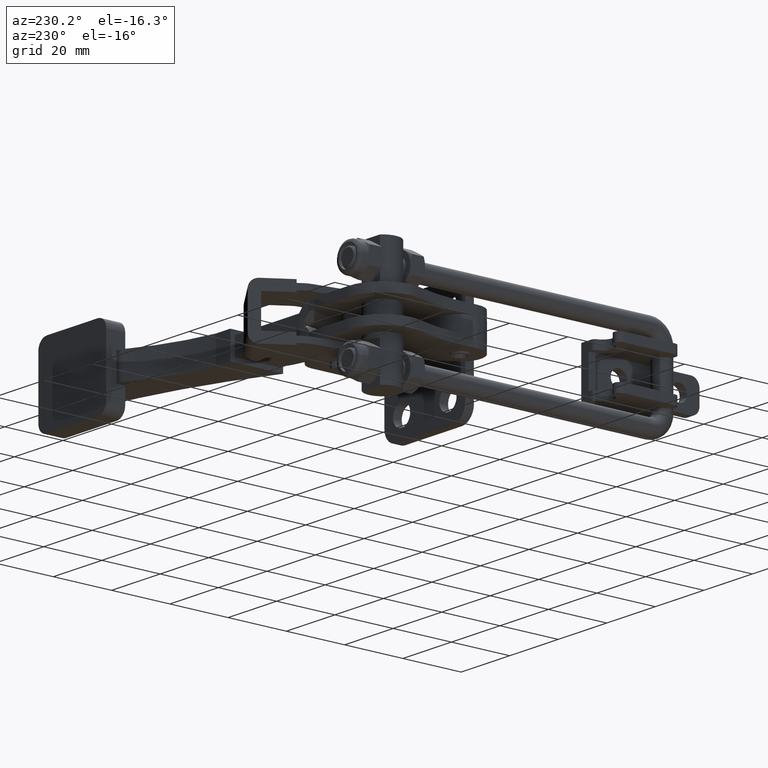
[diagram: clean part render]
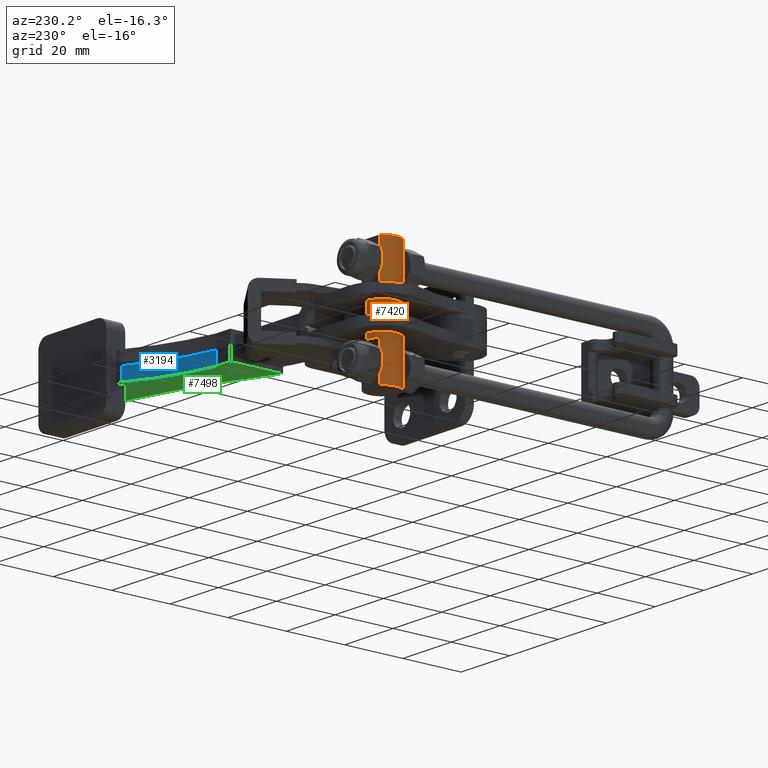
[diagram: same view with three faces highlighted in distinct colors, each labeled with its STEP entity id]
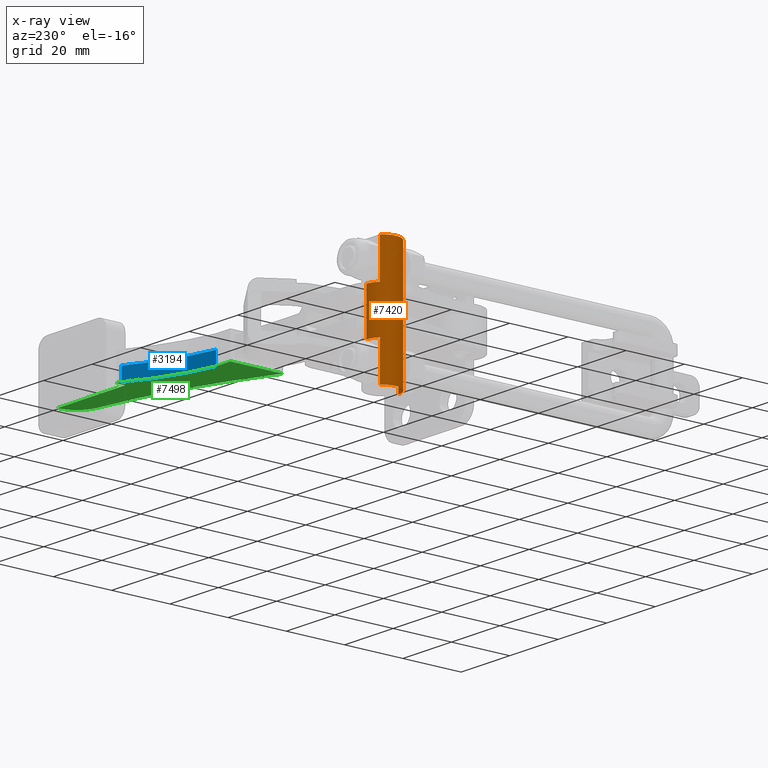
[diagram: x-ray of the same camera — body ghosted, the three highlighted faces saturated]
A machine part, auxiliary view with three faces highlighted in distinct colors.
The next image is the same camera in x-ray (body ghosted, the three faces saturated) — at least one of them is partly hidden behind the body in this view.
Their STEP definitions:

[orange] entity #7420 — the highlighted cylindrical surface (edge-blend (fillet) strip) has radius 5.5 mm, axis along (0, -0, 1).
#222 = EDGE_CURVE ( 'NONE', #4250, #13028, #6170, .T. ) ;
#230 = CARTESIAN_POINT ( 'NONE',  ( -42.39142380391529500, 33.50005253218331800, -20.64999999999978500 ) ) ;
#346 = DIRECTION ( 'NONE',  ( 2.241968444763827700E-018, -6.119128233782430400E-017, 1.000000000000000000 ) ) ;
#416 = AXIS2_PLACEMENT_3D ( 'NONE', #11990, #13130, #11978 ) ;
#536 = VERTEX_POINT ( 'NONE', #4792 ) ;
#758 = VERTEX_POINT ( 'NONE', #2503 ) ;
#777 = VERTEX_POINT ( 'NONE', #1076 ) ;
#918 = DIRECTION ( 'NONE',  ( 2.241968444763827700E-018, -6.119128233782430400E-017, 1.000000000000000000 ) ) ;
#950 = CARTESIAN_POINT ( 'NONE',  ( -45.74134322373380000, 34.63793837835929400, -14.22812737201118700 ) ) ;
#1001 = CARTESIAN_POINT ( 'NONE',  ( -43.49183551389014500, 33.60716650572749100, -10.82814243187625200 ) ) ;
#1076 = CARTESIAN_POINT ( 'NONE',  ( -46.16634102155067200, 43.00005253218332500, -7.649999999999789900 ) ) ;
#1225 = VECTOR ( 'NONE', #6030, 1000.000000000000000 ) ;
#1396 = CYLINDRICAL_SURFACE ( 'NONE', #416, 5.499999999999998200 ) ;
#1407 = ORIENTED_EDGE ( 'NONE', *, *, #10568, .T. ) ;
#1598 = B_SPLINE_CURVE_WITH_KNOTS ( 'NONE', 3,
 ( #9100, #3569, #14089, #7737, #9667, #7435, #14339, #9120, #14020, #11874, #3854, #9798, #11795, #13446, #14139, #4311, #14380, #1875, #12613, #14391, #12757, #8456, #9101, #8104, #12925, #12785, #8881, #9885, #6995, #13637, #8692, #3111 ),
 .UNSPECIFIED., .F., .F.,
 ( 4, 2, 2, 2, 2, 2, 2, 2, 2, 2, 2, 2, 2, 2, 2, 4 ),
 ( 0.0000000000000000000, 0.0006723597640880855300, 0.001344719528176171100, 0.002689439056352317000, 0.003361798820440393200, 0.004034158584528468500, 0.004706518348616545200, 0.005378878112704620900, 0.006051237876792696700, 0.006723597640880773400, 0.007395957404968849100, 0.008068317169056924900, 0.008740676933145001500, 0.009413036697233076500, 0.01008539646132115300, 0.01075775622540922800 ),
 .UNSPECIFIED. ) ;
#1791 = CARTESIAN_POINT ( 'NONE',  ( -46.16634102155067200, 43.00005253218332500, -20.64999999999978500 ) ) ;
#1806 = CARTESIAN_POINT ( 'NONE',  ( -42.39142380391529500, 44.50005253218331800, 7.650000000000213500 ) ) ;
#1875 = CARTESIAN_POINT ( 'NONE',  ( -45.62977920464811600, 34.55414093817201900, 14.88625114103106600 ) ) ;
#1915 = VERTEX_POINT ( 'NONE', #13599 ) ;
#2038 = CARTESIAN_POINT ( 'NONE',  ( -43.27874923358714900, 33.56764415802536000, -17.23802798993588700 ) ) ;
#2064 = CARTESIAN_POINT ( 'NONE',  ( -42.39142380391529500, 33.50005253218331800, -17.34999999999978500 ) ) ;
#2081 = CARTESIAN_POINT ( 'NONE',  ( -45.71877052547995400, 34.62034484813494800, -13.55150186073180100 ) ) ;
#2119 = CARTESIAN_POINT ( 'NONE',  ( -42.39142380391529500, 39.00005253218331800, -7.649999999999790700 ) ) ;
#2133 = CARTESIAN_POINT ( 'NONE',  ( -42.84429029650569000, 33.51435123301339300, -10.67333827091981900 ) ) ;
#2157 = CARTESIAN_POINT ( 'NONE',  ( -46.16634102155050800, 43.00005253218319700, 10.72128073784915600 ) ) ;
#2187 = EDGE_CURVE ( 'NONE', #2461, #8817, #4445, .T. ) ;
#2244 = VECTOR ( 'NONE', #2925, 1000.000000000000000 ) ;
#2440 = VERTEX_POINT ( 'NONE', #5375 ) ;
#2461 = VERTEX_POINT ( 'NONE', #4864 ) ;
#2503 = CARTESIAN_POINT ( 'NONE',  ( -46.16634102155050800, 43.00005253218320400, -17.27871926215054200 ) ) ;
#2538 = LINE ( 'NONE', #230, #5174 ) ;
#2649 = EDGE_CURVE ( 'NONE', #11274, #12386, #3459, .T. ) ;
#2657 = VECTOR ( 'NONE', #918, 1000.000000000000000 ) ;
#2741 = CARTESIAN_POINT ( 'NONE',  ( -46.16634102155067200, 43.00005253218331800, 20.65000000000020800 ) ) ;
#2805 = FACE_OUTER_BOUND ( 'NONE', #11629, .T. ) ;
#2888 = EDGE_CURVE ( 'NONE', #2908, #4036, #1598, .T. ) ;
#2908 = VERTEX_POINT ( 'NONE', #5831 ) ;
#2925 = DIRECTION ( 'NONE',  ( -2.241968444763827700E-018, 6.119128233782430400E-017, -1.000000000000000000 ) ) ;
#3101 = VECTOR ( 'NONE', #9444, 1000.000000000000000 ) ;
#3111 = CARTESIAN_POINT ( 'NONE',  ( -42.39142380391529500, 33.50005253218331100, 17.35000000000021500 ) ) ;
#3140 = VECTOR ( 'NONE', #346, 1000.000000000000000 ) ;
#3167 = CARTESIAN_POINT ( 'NONE',  ( -44.10099761140556800, 33.75595272162382800, -16.91420398745078700 ) ) ;
#3180 = LINE ( 'NONE', #3240, #8851 ) ;
#3215 = CARTESIAN_POINT ( 'NONE',  ( -45.56322256464710600, 34.50559559467920000, -12.90014710428484600 ) ) ;
#3240 = CARTESIAN_POINT ( 'NONE',  ( -46.16634102155066400, 43.00005253218333200, -20.64999999999978500 ) ) ;
#3253 = DIRECTION ( 'NONE',  ( 0.0000000000000000000, -1.000000000000000000, -3.154042683594195600E-016 ) ) ;
#3263 = CARTESIAN_POINT ( 'NONE',  ( -42.39142380391529500, 33.50005253218331100, -10.64999999999978400 ) ) ;
#3297 = DIRECTION ( 'NONE',  ( 0.0000000000000000000, 1.000000000000000000, 0.0000000000000000000 ) ) ;
#3403 = DIRECTION ( 'NONE',  ( -2.241968444763827700E-018, 6.119128233782430400E-017, -1.000000000000000000 ) ) ;
#3452 = CARTESIAN_POINT ( 'NONE',  ( -42.39142380391529500, 39.00005253218331800, -20.64999999999978500 ) ) ;
#3459 = LINE ( 'NONE', #8925, #3101 ) ;
#3569 = CARTESIAN_POINT ( 'NONE',  ( -42.61911821617037800, 33.50005253218332500, 10.65000000000020100 ) ) ;
#3820 = CARTESIAN_POINT ( 'NONE',  ( -42.39142380391529500, 33.50005253218331800, -20.64999999999978500 ) ) ;
#3854 = CARTESIAN_POINT ( 'NONE',  ( -45.39299423060712300, 34.39017427551039700, 12.49661989596003600 ) ) ;
#4036 = VERTEX_POINT ( 'NONE', #11885 ) ;
#4141 = DIRECTION ( 'NONE',  ( -2.241968444763827700E-018, 6.119128233782430400E-017, -1.000000000000000000 ) ) ;
#4250 = VERTEX_POINT ( 'NONE', #6771 ) ;
#4273 = CARTESIAN_POINT ( 'NONE',  ( -44.91497202565246000, 34.11032229401548200, -16.21349340998288500 ) ) ;
#4307 = ORIENTED_EDGE ( 'NONE', *, *, #4780, .T. ) ;
#4311 = CARTESIAN_POINT ( 'NONE',  ( -45.74150396394330200, 34.63806182475904900, 14.22575459801482500 ) ) ;
#4324 = CARTESIAN_POINT ( 'NONE',  ( -45.28967861441921600, 34.32357962999013500, -12.30629854331278500 ) ) ;
#4445 = LINE ( 'NONE', #13015, #4811 ) ;
#4748 = CARTESIAN_POINT ( 'NONE',  ( -42.39142380391529500, 33.50005253218331800, 20.65000000000020800 ) ) ;
#4780 = EDGE_CURVE ( 'NONE', #4036, #7916, #6032, .T. ) ;
#4792 = CARTESIAN_POINT ( 'NONE',  ( -46.16634102155067200, 43.00005253218332500, -20.64999999999978500 ) ) ;
#4811 = VECTOR ( 'NONE', #8625, 1000.000000000000000 ) ;
#4864 = CARTESIAN_POINT ( 'NONE',  ( -46.16634102155066400, 43.00005253218331800, 17.27871926215189500 ) ) ;
#5174 = VECTOR ( 'NONE', #6961, 1000.000000000000000 ) ;
#5213 = EDGE_CURVE ( 'NONE', #6992, #2461, #10416, .T. ) ;
#5246 = ORIENTED_EDGE ( 'NONE', *, *, #5213, .T. ) ;
#5301 = EDGE_CURVE ( 'NONE', #7916, #6992, #9011, .T. ) ;
#5375 = CARTESIAN_POINT ( 'NONE',  ( -46.16634102155067200, 43.00005253218332500, -10.72128073784782900 ) ) ;
#5387 = EDGE_CURVE ( 'NONE', #777, #2440, #9889, .T. ) ;
#5441 = CARTESIAN_POINT ( 'NONE',  ( -45.29100554486322500, 34.32441646700254300, -15.69136711737208900 ) ) ;
#5493 = CARTESIAN_POINT ( 'NONE',  ( -44.91480502815109300, 34.11019747778534100, -11.78618498947016800 ) ) ;
#5662 = ORIENTED_EDGE ( 'NONE', *, *, #13742, .T. ) ;
#5831 = CARTESIAN_POINT ( 'NONE',  ( -42.39142380391529500, 33.50005253218331800, 10.65000000000020100 ) ) ;
#5903 = CARTESIAN_POINT ( 'NONE',  ( -42.39142380391529500, 33.50005253218331100, -10.64999999999978400 ) ) ;
#6030 = DIRECTION ( 'NONE',  ( -2.241968444763827700E-018, 6.119128233782430400E-017, -1.000000000000000000 ) ) ;
#6032 = LINE ( 'NONE', #3820, #2657 ) ;
#6062 = CARTESIAN_POINT ( 'NONE',  ( -46.16634102155067200, 43.00005253218332500, -20.64999999999978500 ) ) ;
#6170 = LINE ( 'NONE', #8350, #3140 ) ;
#6226 = EDGE_CURVE ( 'NONE', #1915, #13028, #9709, .T. ) ;
#6312 = AXIS2_PLACEMENT_3D ( 'NONE', #2119, #10030, #3253 ) ;
#6570 = CARTESIAN_POINT ( 'NONE',  ( -45.56184457159457700, 34.50462877867526900, -15.10363441387187700 ) ) ;
#6584 = ORIENTED_EDGE ( 'NONE', *, *, #5387, .T. ) ;
#6615 = CARTESIAN_POINT ( 'NONE',  ( -44.44536289227350800, 33.89445988140258900, -11.34484437088534900 ) ) ;
#6636 = ORIENTED_EDGE ( 'NONE', *, *, #222, .F. ) ;
#6771 = CARTESIAN_POINT ( 'NONE',  ( -42.39142380391529500, 44.50005253218331800, -7.649999999999789000 ) ) ;
#6838 = DIRECTION ( 'NONE',  ( -2.241968444763827700E-018, 6.119128233782430400E-017, -1.000000000000000000 ) ) ;
#6876 = ORIENTED_EDGE ( 'NONE', *, *, #2888, .T. ) ;
#6961 = DIRECTION ( 'NONE',  ( 2.241968444763827700E-018, -6.119128233782430400E-017, 1.000000000000000000 ) ) ;
#6992 = VERTEX_POINT ( 'NONE', #2741 ) ;
#6995 = CARTESIAN_POINT ( 'NONE',  ( -43.27923250242011500, 33.56775996654540300, 17.23783292260379000 ) ) ;
#7377 = VECTOR ( 'NONE', #8657, 1000.000000000000000 ) ;
#7391 = EDGE_CURVE ( 'NONE', #2440, #758, #14360, .T. ) ;
#7420 = ADVANCED_FACE ( 'NONE', ( #2805 ), #1396, .T. ) ;
#7435 = CARTESIAN_POINT ( 'NONE',  ( -44.10099761140556800, 33.75595272162381400, 11.08579601254921900 ) ) ;
#7496 = DIRECTION ( 'NONE',  ( 0.0000000000000000000, 1.000000000000000000, 0.0000000000000000000 ) ) ;
#7548 = DIRECTION ( 'NONE',  ( -2.241968444763827700E-018, 6.119128233782430400E-017, -1.000000000000000000 ) ) ;
#7577 = CARTESIAN_POINT ( 'NONE',  ( -42.39142380391529500, 39.00005253218331800, 20.65000000000020800 ) ) ;
#7627 = EDGE_CURVE ( 'NONE', #11274, #536, #10036, .T. ) ;
#7671 = CARTESIAN_POINT ( 'NONE',  ( -45.71806245739458800, 34.61980569551002400, -14.45329914699996700 ) ) ;
#7715 = CARTESIAN_POINT ( 'NONE',  ( -43.89996985261085200, 33.70681019456478100, -11.00068754830735100 ) ) ;
#7723 = ORIENTED_EDGE ( 'NONE', *, *, #9474, .T. ) ;
#7737 = CARTESIAN_POINT ( 'NONE',  ( -43.27874923358712800, 33.56764415802535200, 10.76197201006410800 ) ) ;
#7916 = VERTEX_POINT ( 'NONE', #4748 ) ;
#8104 = CARTESIAN_POINT ( 'NONE',  ( -44.61213690595935300, 33.96551495915269900, 16.51731265878571600 ) ) ;
#8350 = CARTESIAN_POINT ( 'NONE',  ( -42.39142380391529500, 44.50005253218331800, -20.64999999999978500 ) ) ;
#8443 = AXIS2_PLACEMENT_3D ( 'NONE', #3452, #3403, #3297 ) ;
#8456 = CARTESIAN_POINT ( 'NONE',  ( -45.05001497887502600, 34.18329296625287100, 16.04948738357178000 ) ) ;
#8625 = DIRECTION ( 'NONE',  ( -2.241968444763827700E-018, 6.119128233782430400E-017, -1.000000000000000000 ) ) ;
#8657 = DIRECTION ( 'NONE',  ( -2.241968444763827700E-018, 6.119128233782430400E-017, -1.000000000000000000 ) ) ;
#8692 = CARTESIAN_POINT ( 'NONE',  ( -42.61802136014346600, 33.50005253218332500, 17.35000000000022200 ) ) ;
#8802 = CARTESIAN_POINT ( 'NONE',  ( -42.84198347851956600, 33.51412479465484000, -17.32703586716029100 ) ) ;
#8817 = VERTEX_POINT ( 'NONE', #2157 ) ;
#8832 = B_SPLINE_CURVE_WITH_KNOTS ( 'NONE', 3,
 ( #9895, #11007, #8802, #2038, #9946, #3167, #11054, #4273, #12187, #5441, #13264, #6570, #14375, #7671, #950, #8859, #2081, #9996, #3215, #11103, #4324, #12234, #5493, #13314, #6615, #14421, #7715, #1001, #8911, #2133, #10042, #3263 ),
 .UNSPECIFIED., .F., .F.,
 ( 4, 2, 2, 2, 2, 2, 2, 2, 2, 2, 2, 2, 2, 2, 2, 4 ),
 ( 0.0000000000000000000, 0.0006723597640880834700, 0.001344719528176166900, 0.002689439056352310500, 0.003361798820440388800, 0.004034158584528467700, 0.004706518348616546000, 0.005378878112704624400, 0.006051237876792698500, 0.006723597640880771600, 0.007395957404968846500, 0.008068317169056919700, 0.008740676933144994600, 0.009413036697233067800, 0.01008539646132114300, 0.01075775622540921600 ),
 .UNSPECIFIED. ) ;
#8851 = VECTOR ( 'NONE', #6838, 1000.000000000000000 ) ;
#8859 = CARTESIAN_POINT ( 'NONE',  ( -45.74150396394330200, 34.63806182475904200, -13.77424540198518000 ) ) ;
#8881 = CARTESIAN_POINT ( 'NONE',  ( -43.89996985261084500, 33.70681019456478100, 16.99931245169265300 ) ) ;
#8911 = CARTESIAN_POINT ( 'NONE',  ( -43.27923250242011500, 33.56775996654540300, -10.76216707739620800 ) ) ;
#8925 = CARTESIAN_POINT ( 'NONE',  ( -42.39142380391529500, 33.50005253218331800, -20.64999999999978500 ) ) ;
#8956 = DIRECTION ( 'NONE',  ( -2.241968444763827700E-018, 6.119128233782430400E-017, -1.000000000000000000 ) ) ;
#9011 = CIRCLE ( 'NONE', #12541, 5.499999999999998200 ) ;
#9024 = CARTESIAN_POINT ( 'NONE',  ( -46.16634102155066400, 43.00005253218333200, -20.64999999999978500 ) ) ;
#9100 = CARTESIAN_POINT ( 'NONE',  ( -42.39142380391529500, 33.50005253218331800, 10.65000000000020100 ) ) ;
#9101 = CARTESIAN_POINT ( 'NONE',  ( -44.91480502815108600, 34.11019747778532700, 16.21381501052983500 ) ) ;
#9120 = CARTESIAN_POINT ( 'NONE',  ( -44.91497202565248900, 34.11032229401550400, 11.78650659001712100 ) ) ;
#9175 = ORIENTED_EDGE ( 'NONE', *, *, #11507, .T. ) ;
#9444 = DIRECTION ( 'NONE',  ( 2.241968444763827700E-018, -6.119128233782430400E-017, 1.000000000000000000 ) ) ;
#9474 = EDGE_CURVE ( 'NONE', #9491, #2908, #2538, .T. ) ;
#9491 = VERTEX_POINT ( 'NONE', #5903 ) ;
#9619 = ORIENTED_EDGE ( 'NONE', *, *, #6226, .T. ) ;
#9667 = CARTESIAN_POINT ( 'NONE',  ( -43.49452769414111900, 33.60779250841217400, 10.82922033589524300 ) ) ;
#9694 = ORIENTED_EDGE ( 'NONE', *, *, #11674, .T. ) ;
#9709 = CIRCLE ( 'NONE', #12374, 5.499999999999998200 ) ;
#9791 = ORIENTED_EDGE ( 'NONE', *, *, #7391, .T. ) ;
#9798 = CARTESIAN_POINT ( 'NONE',  ( -45.56184457159458400, 34.50462877867526100, 12.89636558612812500 ) ) ;
#9885 = CARTESIAN_POINT ( 'NONE',  ( -43.49183551389013000, 33.60716650572749100, 17.17185756812373800 ) ) ;
#9889 = LINE ( 'NONE', #6062, #1225 ) ;
#9895 = CARTESIAN_POINT ( 'NONE',  ( -42.39142380391529500, 33.50005253218331800, -17.34999999999978500 ) ) ;
#9946 = CARTESIAN_POINT ( 'NONE',  ( -43.49452769414111900, 33.60779250841217400, -17.17077966410475700 ) ) ;
#9996 = CARTESIAN_POINT ( 'NONE',  ( -45.62977920464814500, 34.55414093817203300, -13.11374885896893800 ) ) ;
#10030 = DIRECTION ( 'NONE',  ( 2.241968444763827700E-018, -3.337185885346571300E-016, 1.000000000000000000 ) ) ;
#10036 = CIRCLE ( 'NONE', #8443, 5.499999999999998200 ) ;
#10042 = CARTESIAN_POINT ( 'NONE',  ( -42.61802136014347300, 33.50005253218331800, -10.64999999999978700 ) ) ;
#10142 = ORIENTED_EDGE ( 'NONE', *, *, #2187, .T. ) ;
#10416 = LINE ( 'NONE', #9024, #7377 ) ;
#10535 = CARTESIAN_POINT ( 'NONE',  ( -42.39142380391529500, 33.50005253218331800, -20.64999999999978500 ) ) ;
#10568 = EDGE_CURVE ( 'NONE', #8817, #1915, #3180, .T. ) ;
#10731 = CARTESIAN_POINT ( 'NONE',  ( -46.16634102155067200, 43.00005253218332500, -20.64999999999978500 ) ) ;
#11007 = CARTESIAN_POINT ( 'NONE',  ( -42.61911821617035700, 33.50005253218331800, -17.34999999999979500 ) ) ;
#11054 = CARTESIAN_POINT ( 'NONE',  ( -44.46408084635026400, 33.89465122548982400, -16.66608094369423300 ) ) ;
#11103 = CARTESIAN_POINT ( 'NONE',  ( -45.39401353695714600, 34.39083291963605400, -12.49852117370090300 ) ) ;
#11126 = ORIENTED_EDGE ( 'NONE', *, *, #2649, .T. ) ;
#11274 = VERTEX_POINT ( 'NONE', #10535 ) ;
#11432 = VECTOR ( 'NONE', #4141, 1000.000000000000000 ) ;
#11507 = EDGE_CURVE ( 'NONE', #758, #536, #14170, .T. ) ;
#11629 = EDGE_LOOP ( 'NONE', ( #6636, #5662, #6584, #9791, #9175, #14181, #11126, #9694, #7723, #6876, #4307, #13167, #5246, #10142, #1407, #9619 ) ) ;
#11674 = EDGE_CURVE ( 'NONE', #12386, #9491, #8832, .T. ) ;
#11795 = CARTESIAN_POINT ( 'NONE',  ( -45.62889326138245100, 34.55349447083110400, 13.11073268391299400 ) ) ;
#11874 = CARTESIAN_POINT ( 'NONE',  ( -45.29100554486320400, 34.32441646700254300, 12.30863288262791500 ) ) ;
#11885 = CARTESIAN_POINT ( 'NONE',  ( -42.39142380391529500, 33.50005253218331100, 17.35000000000021500 ) ) ;
#11978 = DIRECTION ( 'NONE',  ( 0.0000000000000000000, -1.000000000000000000, 0.0000000000000000000 ) ) ;
#11990 = CARTESIAN_POINT ( 'NONE',  ( -42.39142380391529500, 39.00005253218331800, -20.64999999999978500 ) ) ;
#12187 = CARTESIAN_POINT ( 'NONE',  ( -45.05222120318264700, 34.18452513775290000, -16.04657132742010400 ) ) ;
#12234 = CARTESIAN_POINT ( 'NONE',  ( -45.05001497887501900, 34.18329296625287100, -11.95051261642822600 ) ) ;
#12374 = AXIS2_PLACEMENT_3D ( 'NONE', #13390, #8956, #13367 ) ;
#12386 = VERTEX_POINT ( 'NONE', #2064 ) ;
#12541 = AXIS2_PLACEMENT_3D ( 'NONE', #7577, #7548, #7496 ) ;
#12613 = CARTESIAN_POINT ( 'NONE',  ( -45.56322256464707700, 34.50559559467919300, 15.09985289571516100 ) ) ;
#12757 = CARTESIAN_POINT ( 'NONE',  ( -45.28967861441923000, 34.32357962999014200, 15.69370145668722000 ) ) ;
#12785 = CARTESIAN_POINT ( 'NONE',  ( -44.08993211223419500, 33.76547407532896000, 16.89544240489717800 ) ) ;
#12925 = CARTESIAN_POINT ( 'NONE',  ( -44.44536289227350100, 33.89445988140258900, 16.65515562911464900 ) ) ;
#13015 = CARTESIAN_POINT ( 'NONE',  ( -46.16634102155066400, 43.00005253218333200, -20.64999999999978500 ) ) ;
#13028 = VERTEX_POINT ( 'NONE', #1806 ) ;
#13130 = DIRECTION ( 'NONE',  ( 2.241968444763827700E-018, -6.119128233782430400E-017, 1.000000000000000000 ) ) ;
#13167 = ORIENTED_EDGE ( 'NONE', *, *, #5301, .T. ) ;
#13264 = CARTESIAN_POINT ( 'NONE',  ( -45.39299423060713000, 34.39017427551043900, -15.50338010403996400 ) ) ;
#13314 = CARTESIAN_POINT ( 'NONE',  ( -44.61213690595935300, 33.96551495915270600, -11.48268734121427700 ) ) ;
#13367 = DIRECTION ( 'NONE',  ( 0.0000000000000000000, 1.000000000000000000, 0.0000000000000000000 ) ) ;
#13390 = CARTESIAN_POINT ( 'NONE',  ( -42.39142380391529500, 39.00005253218331800, 7.650000000000213500 ) ) ;
#13446 = CARTESIAN_POINT ( 'NONE',  ( -45.71806245739459500, 34.61980569551003800, 13.54670085300002900 ) ) ;
#13599 = CARTESIAN_POINT ( 'NONE',  ( -46.16634102155066400, 43.00005253218331800, 7.650000000000212600 ) ) ;
#13637 = CARTESIAN_POINT ( 'NONE',  ( -42.84429029650568300, 33.51435123301340000, 17.32666172908018600 ) ) ;
#13742 = EDGE_CURVE ( 'NONE', #4250, #777, #14146, .T. ) ;
#14020 = CARTESIAN_POINT ( 'NONE',  ( -45.05222120318264700, 34.18452513775290000, 11.95342867257990200 ) ) ;
#14089 = CARTESIAN_POINT ( 'NONE',  ( -42.84198347851955900, 33.51412479465484000, 10.67296413283970800 ) ) ;
#14139 = CARTESIAN_POINT ( 'NONE',  ( -45.74134322373381400, 34.63793837835928700, 13.77187262798881700 ) ) ;
#14146 = CIRCLE ( 'NONE', #6312, 5.499999999999998200 ) ;
#14170 = LINE ( 'NONE', #1791, #2244 ) ;
#14181 = ORIENTED_EDGE ( 'NONE', *, *, #7627, .F. ) ;
#14339 = CARTESIAN_POINT ( 'NONE',  ( -44.46408084635027800, 33.89465122548981700, 11.33391905630577200 ) ) ;
#14360 = LINE ( 'NONE', #10731, #11432 ) ;
#14375 = CARTESIAN_POINT ( 'NONE',  ( -45.62889326138243700, 34.55349447083109700, -14.88926731608700400 ) ) ;
#14380 = CARTESIAN_POINT ( 'NONE',  ( -45.71877052547994700, 34.62034484813493400, 14.44849813926820500 ) ) ;
#14391 = CARTESIAN_POINT ( 'NONE',  ( -45.39401353695713900, 34.39083291963605400, 15.50147882629910300 ) ) ;
#14421 = CARTESIAN_POINT ( 'NONE',  ( -44.08993211223420200, 33.76547407532897400, -11.10455759510282000 ) ) ;

[blue] entity #3194 — the highlighted cylindrical surface (partial cylindrical patch) has radius 74.5 mm, axis along (-0, -0, -1).
#911 = CARTESIAN_POINT ( 'NONE',  ( -0.04044781910696182400, 125.7033395967563900, 0.0006030670130470830400 ) ) ;
#983 = CIRCLE ( 'NONE', #3990, 74.50000000000000000 ) ;
#1182 = EDGE_CURVE ( 'NONE', #8634, #13946, #983, .T. ) ;
#1837 = VERTEX_POINT ( 'NONE', #8567 ) ;
#2380 = DIRECTION ( 'NONE',  ( 9.483114549149011000E-018, 2.679272407290757200E-015, 1.000000000000000000 ) ) ;
#2717 = CARTESIAN_POINT ( 'NONE',  ( -0.04044781910696182400, 125.7033395967563900, 0.0006030670130388431100 ) ) ;
#3013 = ORIENTED_EDGE ( 'NONE', *, *, #5816, .T. ) ;
#3021 = CARTESIAN_POINT ( 'NONE',  ( 10.58711576103812200, 51.96525654362857000, -4.499396932986754500 ) ) ;
#3160 = CIRCLE ( 'NONE', #5404, 74.50000000000000000 ) ;
#3194 = ADVANCED_FACE ( 'NONE', ( #11187 ), #7105, .F. ) ;
#3443 = VERTEX_POINT ( 'NONE', #3021 ) ;
#3527 = DIRECTION ( 'NONE',  ( 0.9999999985005818500, 5.476163367287416900E-005, -1.164243943608595400E-017 ) ) ;
#3552 = CARTESIAN_POINT ( 'NONE',  ( 10.58711576103811500, 51.96525654362858400, 0.0006030670132452752000 ) ) ;
#3676 = DIRECTION ( 'NONE',  ( -9.483114549149011000E-018, -2.679272407290757200E-015, -1.000000000000000000 ) ) ;
#3990 = AXIS2_PLACEMENT_3D ( 'NONE', #2717, #6907, #5573 ) ;
#4377 = VECTOR ( 'NONE', #2380, 1000.000000000000000 ) ;
#4817 = AXIS2_PLACEMENT_3D ( 'NONE', #911, #12811, #14295 ) ;
#5226 = LINE ( 'NONE', #14257, #10880 ) ;
#5404 = AXIS2_PLACEMENT_3D ( 'NONE', #5904, #3676, #3527 ) ;
#5573 = DIRECTION ( 'NONE',  ( 0.9999999985005818500, 5.476163367324672800E-005, 1.427875842460395100E-017 ) ) ;
#5816 = EDGE_CURVE ( 'NONE', #1837, #3443, #3160, .T. ) ;
#5904 = CARTESIAN_POINT ( 'NONE',  ( -0.04044781910696182400, 125.7033395967563600, -4.499396932986952500 ) ) ;
#6679 = LINE ( 'NONE', #13776, #4377 ) ;
#6907 = DIRECTION ( 'NONE',  ( 1.443232461969231600E-017, -2.799379233058404100E-015, -1.000000000000000000 ) ) ;
#7105 = CYLINDRICAL_SURFACE ( 'NONE', #4817, 74.50000000000000000 ) ;
#7209 = EDGE_CURVE ( 'NONE', #1837, #8634, #6679, .T. ) ;
#8114 = ORIENTED_EDGE ( 'NONE', *, *, #7209, .F. ) ;
#8567 = CARTESIAN_POINT ( 'NONE',  ( 37.93571902288182000, 61.60918423147027300, -4.499396932986781100 ) ) ;
#8634 = VERTEX_POINT ( 'NONE', #13954 ) ;
#10090 = EDGE_LOOP ( 'NONE', ( #3013, #13728, #13929, #8114 ) ) ;
#10281 = DIRECTION ( 'NONE',  ( -9.483114549149011000E-018, -2.679272407290757200E-015, -1.000000000000000000 ) ) ;
#10880 = VECTOR ( 'NONE', #10281, 1000.000000000000000 ) ;
#11187 = FACE_OUTER_BOUND ( 'NONE', #10090, .T. ) ;
#12811 = DIRECTION ( 'NONE',  ( -9.483114549149011000E-018, -2.679272407290757200E-015, -1.000000000000000000 ) ) ;
#13154 = EDGE_CURVE ( 'NONE', #13946, #3443, #5226, .T. ) ;
#13728 = ORIENTED_EDGE ( 'NONE', *, *, #13154, .F. ) ;
#13776 = CARTESIAN_POINT ( 'NONE',  ( 37.93571902288182000, 61.60918423147030200, 0.0006030670132183869900 ) ) ;
#13929 = ORIENTED_EDGE ( 'NONE', *, *, #1182, .F. ) ;
#13946 = VERTEX_POINT ( 'NONE', #3552 ) ;
#13954 = CARTESIAN_POINT ( 'NONE',  ( 37.93571902288182000, 61.60918423147028700, 0.0006030670132188206700 ) ) ;
#14257 = CARTESIAN_POINT ( 'NONE',  ( 10.58711576103812200, 51.96525654362858400, 0.0006030670132444078400 ) ) ;
#14295 = DIRECTION ( 'NONE',  ( 0.9999999985005818500, 5.476163367287416900E-005, -9.630025588246878400E-018 ) ) ;

[green] entity #7498 — the highlighted planar face has unit normal (-0, -0, -1).
#17 = CARTESIAN_POINT ( 'NONE',  ( 10.58711576103812200, 51.96525654362857000, -4.499396932986754500 ) ) ;
#150 = VECTOR ( 'NONE', #2681, 1000.000000000000200 ) ;
#556 = VERTEX_POINT ( 'NONE', #1483 ) ;
#569 = VERTEX_POINT ( 'NONE', #8799 ) ;
#897 = ORIENTED_EDGE ( 'NONE', *, *, #2759, .F. ) ;
#1158 = EDGE_CURVE ( 'NONE', #11457, #3455, #10002, .T. ) ;
#1248 = LINE ( 'NONE', #7511, #7215 ) ;
#1483 = CARTESIAN_POINT ( 'NONE',  ( 4.707866288584932100, 51.96493458632219400, -4.499396932986754500 ) ) ;
#1567 = DIRECTION ( 'NONE',  ( 0.9999999985005817400, 5.476163367306202700E-005, -9.718338800990518400E-018 ) ) ;
#1616 = AXIS2_PLACEMENT_3D ( 'NONE', #13723, #8965, #7967 ) ;
#1717 = AXIS2_PLACEMENT_3D ( 'NONE', #1938, #1888, #1567 ) ;
#1837 = VERTEX_POINT ( 'NONE', #8567 ) ;
#1888 = DIRECTION ( 'NONE',  ( -9.483114549149011000E-018, -2.679272407290757200E-015, -1.000000000000000000 ) ) ;
#1938 = CARTESIAN_POINT ( 'NONE',  ( 84.35511467314812300, -126.0043395210149700, -4.499396932986279300 ) ) ;
#2681 = DIRECTION ( 'NONE',  ( 5.476163367303976700E-005, -0.9999999985005816300, 2.679271883962561000E-015 ) ) ;
#2698 = CARTESIAN_POINT ( 'NONE',  ( 39.69003674822349100, 125.7055153030011600, -4.499396932986952500 ) ) ;
#2759 = EDGE_CURVE ( 'NONE', #569, #9227, #6621, .T. ) ;
#2883 = CARTESIAN_POINT ( 'NONE',  ( 67.69369516337103200, 58.90010953001467400, -4.499396932986774000 ) ) ;
#3021 = CARTESIAN_POINT ( 'NONE',  ( 10.58711576103812200, 51.96525654362857000, -4.499396932986754500 ) ) ;
#3160 = CIRCLE ( 'NONE', #5404, 74.50000000000000000 ) ;
#3172 = ORIENTED_EDGE ( 'NONE', *, *, #5137, .F. ) ;
#3222 = EDGE_CURVE ( 'NONE', #6519, #1837, #4117, .T. ) ;
#3443 = VERTEX_POINT ( 'NONE', #3021 ) ;
#3455 = VERTEX_POINT ( 'NONE', #12272 ) ;
#3527 = DIRECTION ( 'NONE',  ( 0.9999999985005818500, 5.476163367287416900E-005, -1.164243943608595400E-017 ) ) ;
#3676 = DIRECTION ( 'NONE',  ( -9.483114549149011000E-018, -2.679272407290757200E-015, -1.000000000000000000 ) ) ;
#3684 = EDGE_CURVE ( 'NONE', #4161, #569, #9629, .T. ) ;
#3840 = ORIENTED_EDGE ( 'NONE', *, *, #1158, .F. ) ;
#3971 = CARTESIAN_POINT ( 'NONE',  ( -7.246527512907087900, 62.96427996068067000, -4.499396932986784700 ) ) ;
#4053 = AXIS2_PLACEMENT_3D ( 'NONE', #13215, #8503, #8320 ) ;
#4107 = CARTESIAN_POINT ( 'NONE',  ( 67.69369744833997500, 58.85838380367093200, -4.499396932986774000 ) ) ;
#4117 = CIRCLE ( 'NONE', #4053, 2.000000000000000900 ) ;
#4120 = DIRECTION ( 'NONE',  ( -0.9999999985005816300, -5.476163367303976700E-005, 9.629835869008191000E-018 ) ) ;
#4161 = VERTEX_POINT ( 'NONE', #9385 ) ;
#4808 = ORIENTED_EDGE ( 'NONE', *, *, #6968, .T. ) ;
#5123 = DIRECTION ( 'NONE',  ( 0.9999999985005817400, 5.476163367301014100E-005, 0.0000000000000000000 ) ) ;
#5137 = EDGE_CURVE ( 'NONE', #9227, #11457, #8485, .T. ) ;
#5311 = ORIENTED_EDGE ( 'NONE', *, *, #3684, .F. ) ;
#5404 = AXIS2_PLACEMENT_3D ( 'NONE', #5904, #3676, #3527 ) ;
#5632 = LINE ( 'NONE', #17, #8285 ) ;
#5816 = EDGE_CURVE ( 'NONE', #1837, #3443, #3160, .T. ) ;
#5904 = CARTESIAN_POINT ( 'NONE',  ( -0.04044781910696182400, 125.7033395967563600, -4.499396932986952500 ) ) ;
#5972 = LINE ( 'NONE', #9092, #8612 ) ;
#6279 = CIRCLE ( 'NONE', #9064, 31.50000000000002100 ) ;
#6519 = VERTEX_POINT ( 'NONE', #9809 ) ;
#6576 = EDGE_CURVE ( 'NONE', #556, #14383, #5972, .T. ) ;
#6621 = CIRCLE ( 'NONE', #1616, 7.999999999999983100 ) ;
#6764 = DIRECTION ( 'NONE',  ( -0.9999999985005816300, -5.476163367303976700E-005, 9.629835869008191000E-018 ) ) ;
#6968 = EDGE_CURVE ( 'NONE', #12361, #3455, #13898, .T. ) ;
#7215 = VECTOR ( 'NONE', #4120, 1000.000000000000200 ) ;
#7338 = ORIENTED_EDGE ( 'NONE', *, *, #11042, .F. ) ;
#7498 = ADVANCED_FACE ( 'NONE', ( #14186 ), #9897, .T. ) ;
#7511 = CARTESIAN_POINT ( 'NONE',  ( 67.69353142608636600, 61.89010952553151400, -4.499396932986782900 ) ) ;
#7521 = ORIENTED_EDGE ( 'NONE', *, *, #10461, .F. ) ;
#7967 = DIRECTION ( 'NONE',  ( 0.9999999985005817400, 5.476163367299652800E-005, 0.0000000000000000000 ) ) ;
#8060 = CARTESIAN_POINT ( 'NONE',  ( -0.03678936197572951800, 58.89640049802703500, -4.499396932986774000 ) ) ;
#8106 = VECTOR ( 'NONE', #10153, 1000.000000000000100 ) ;
#8285 = VECTOR ( 'NONE', #9079, 1000.000000000000200 ) ;
#8320 = DIRECTION ( 'NONE',  ( 0.9999999985005818500, 5.476163367212902400E-005, 0.0000000000000000000 ) ) ;
#8485 = LINE ( 'NONE', #9759, #8106 ) ;
#8503 = DIRECTION ( 'NONE',  ( 9.483114549149011000E-018, 2.679272407290757200E-015, 1.000000000000000000 ) ) ;
#8567 = CARTESIAN_POINT ( 'NONE',  ( 37.93571902288182000, 61.60918423147027300, -4.499396932986781100 ) ) ;
#8612 = VECTOR ( 'NONE', #9109, 1000.000000000000200 ) ;
#8688 = ORIENTED_EDGE ( 'NONE', *, *, #5816, .F. ) ;
#8799 = CARTESIAN_POINT ( 'NONE',  ( 60.75155986088492500, 50.92819621004966300, -4.499396932986752700 ) ) ;
#8965 = DIRECTION ( 'NONE',  ( 9.483114549149011000E-018, 2.679272407290757200E-015, 1.000000000000000000 ) ) ;
#9064 = AXIS2_PLACEMENT_3D ( 'NONE', #3971, #11873, #5123 ) ;
#9066 = DIRECTION ( 'NONE',  ( 0.9999999985005816300, 5.476163367303976700E-005, -9.629835869008191000E-018 ) ) ;
#9079 = DIRECTION ( 'NONE',  ( -0.9999999985005816300, -5.476163367303976700E-005, 9.629835869008191000E-018 ) ) ;
#9092 = CARTESIAN_POINT ( 'NONE',  ( 4.707866288584932100, 51.96493458632219400, -4.499396932986754500 ) ) ;
#9109 = DIRECTION ( 'NONE',  ( 5.476163367342220600E-005, -0.9999999985005816300, 2.679271883962561000E-015 ) ) ;
#9117 = DIRECTION ( 'NONE',  ( -9.483114549149006400E-018, -2.679272407290756800E-015, -1.000000000000000000 ) ) ;
#9178 = CARTESIAN_POINT ( 'NONE',  ( -0.04044781910696182400, 125.7033395967563600, -4.499396932986952500 ) ) ;
#9227 = VERTEX_POINT ( 'NONE', #4107 ) ;
#9385 = CARTESIAN_POINT ( 'NONE',  ( 6.493718815001138900, 34.61898703842627600, -4.499396932986709200 ) ) ;
#9510 = AXIS2_PLACEMENT_3D ( 'NONE', #9178, #9117, #9066 ) ;
#9629 = CIRCLE ( 'NONE', #1717, 178.4999999999999400 ) ;
#9672 = VECTOR ( 'NONE', #6764, 1000.000000000000200 ) ;
#9759 = CARTESIAN_POINT ( 'NONE',  ( 67.69369744833997500, 58.85838380367093200, -4.499396932986774000 ) ) ;
#9809 = CARTESIAN_POINT ( 'NONE',  ( 38.95510391147994500, 61.88853576228925800, -4.499396932986782900 ) ) ;
#9897 = PLANE ( 'NONE',  #9510 ) ;
#9978 = CARTESIAN_POINT ( 'NONE',  ( 39.69353146807002700, 61.88857619978867300, -4.499396932986782900 ) ) ;
#10002 = LINE ( 'NONE', #8060, #9672 ) ;
#10153 = DIRECTION ( 'NONE',  ( -5.476163367303976700E-005, 0.9999999985005816300, -2.679271883962561000E-015 ) ) ;
#10230 = ORIENTED_EDGE ( 'NONE', *, *, #14252, .F. ) ;
#10461 = EDGE_CURVE ( 'NONE', #12361, #6519, #1248, .T. ) ;
#11042 = EDGE_CURVE ( 'NONE', #3443, #556, #5632, .T. ) ;
#11457 = VERTEX_POINT ( 'NONE', #2883 ) ;
#11873 = DIRECTION ( 'NONE',  ( 9.483114549149011000E-018, 2.679272407290757200E-015, 1.000000000000000000 ) ) ;
#12058 = CARTESIAN_POINT ( 'NONE',  ( 4.708859868760267600, 33.82120681191563700, -4.499396932986706500 ) ) ;
#12272 = CARTESIAN_POINT ( 'NONE',  ( 39.69369520535471500, 58.89857620427182600, -4.499396932986774000 ) ) ;
#12361 = VERTEX_POINT ( 'NONE', #9978 ) ;
#13212 = ORIENTED_EDGE ( 'NONE', *, *, #6576, .F. ) ;
#13215 = CARTESIAN_POINT ( 'NONE',  ( 38.95521343474728600, 59.88853576528809700, -4.499396932986777600 ) ) ;
#13723 = CARTESIAN_POINT ( 'NONE',  ( 59.69369746033533600, 58.85794571060154100, -4.499396932986774000 ) ) ;
#13769 = ORIENTED_EDGE ( 'NONE', *, *, #3222, .F. ) ;
#13898 = LINE ( 'NONE', #2698, #150 ) ;
#14186 = FACE_OUTER_BOUND ( 'NONE', #14310, .T. ) ;
#14252 = EDGE_CURVE ( 'NONE', #14383, #4161, #6279, .T. ) ;
#14310 = EDGE_LOOP ( 'NONE', ( #7521, #4808, #3840, #3172, #897, #5311, #10230, #13212, #7338, #8688, #13769 ) ) ;
#14383 = VERTEX_POINT ( 'NONE', #12058 ) ;